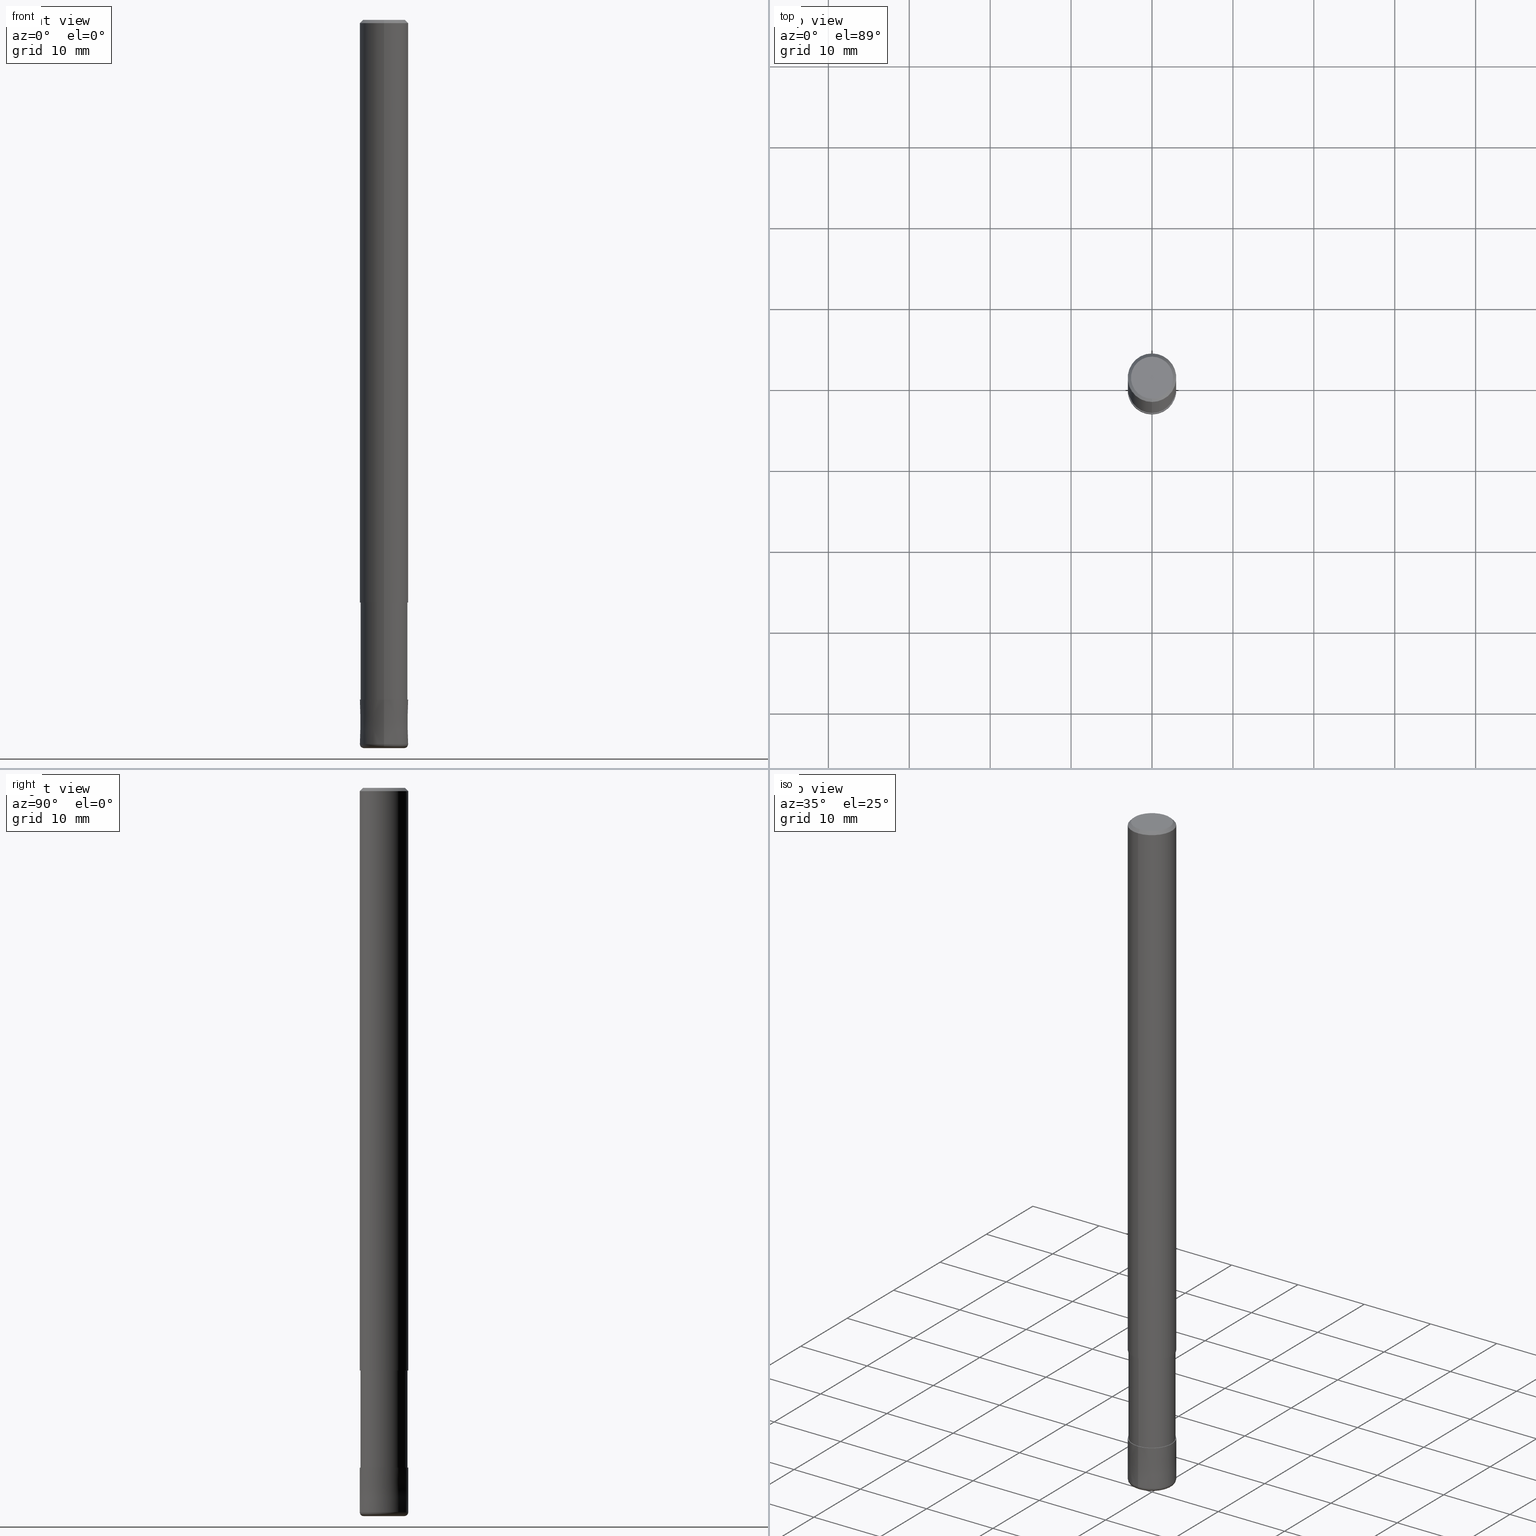
[diagram: canonical four-view strip — front | top / right | iso, engineering-drawing reading convention]
A machine part, canonical four-view strip (front | top / right | iso — engineering-drawing reading convention). The complete STEP part file that produces these views, byte-faithful:
ISO-10303-21;
HEADER;
FILE_DESCRIPTION(('no description'),'unknown implementation level');
FILE_NAME('HRRS4060-05-18-Huellk.stp','  ',('CIMSOURCE GmbH'),('CADClick - KiM GmbH - www.kimweb.de'),'unknown preprocess','ACIS','unknown authorization');
FILE_SCHEMA(('automotive_design'));
ENDSEC;
DATA;
#1=MECHANICAL_DESIGN_GEOMETRIC_PRESENTATION_REPRESENTATION(' ',(#14,#15,#16,#17,#18,#19,#20,#21,#22,#23,#24,#25,#26,#27,#28,#29,#30,#31,#32,#33,#34,#35,#36,#37,#38,#39,#40,#41,#42,#43,#44,#45,#46,#47,#48,#49,#50,#51,#52,#53,#54,#55,#56,#57,#58,#59,#60,#61,#62,#63,#64,#65,#66,#67,#68,#69,#70,#71,#72),#10);
#2=PRODUCT_DEFINITION_CONTEXT('',#73,'design');
#3=APPLICATION_PROTOCOL_DEFINITION('INTERNATIONAL STANDARD','automotive_design',1994,#73);
#4=PRODUCT_CATEGORY_RELATIONSHIP('NONE','NONE',#74,#75);
#5=SHAPE_DEFINITION_REPRESENTATION(#76,#77);
#6=PRODUCT_DEFINITION_CONTEXT('',#78,'design');
#7=APPLICATION_PROTOCOL_DEFINITION('INTERNATIONAL STANDARD','automotive_design',1994,#78);
#8=PRODUCT_CATEGORY_RELATIONSHIP('NONE','NONE',#79,#80);
#9=SHAPE_DEFINITION_REPRESENTATION(#81,#82);
#10= (GEOMETRIC_REPRESENTATION_CONTEXT(3)GLOBAL_UNCERTAINTY_ASSIGNED_CONTEXT((#85))GLOBAL_UNIT_ASSIGNED_CONTEXT((#87,#88,#89))REPRESENTATION_CONTEXT('NONE','WORKSPACE'));
#14=STYLED_ITEM('',(#91),#92);
#15=STYLED_ITEM('',(#93),#94);
#16=STYLED_ITEM('',(#95),#96);
#17=STYLED_ITEM('',(#97),#98);
#18=STYLED_ITEM('',(#99),#100);
#19=STYLED_ITEM('',(#101),#102);
#20=STYLED_ITEM('',(#103),#104);
#21=STYLED_ITEM('',(#105),#106);
#22=STYLED_ITEM('',(#107),#108);
#23=STYLED_ITEM('',(#109),#110);
#24=STYLED_ITEM('',(#111),#112);
#25=STYLED_ITEM('',(#113),#114);
#26=STYLED_ITEM('',(#115),#116);
#27=STYLED_ITEM('',(#117),#118);
#28=STYLED_ITEM('',(#119),#120);
#29=STYLED_ITEM('',(#121),#122);
#30=STYLED_ITEM('',(#123),#124);
#31=STYLED_ITEM('',(#125),#126);
#32=STYLED_ITEM('',(#127),#128);
#33=STYLED_ITEM('',(#129),#130);
#34=STYLED_ITEM('',(#131),#132);
#35=STYLED_ITEM('',(#133),#134);
#36=STYLED_ITEM('',(#135),#136);
#37=STYLED_ITEM('',(#137),#138);
#38=STYLED_ITEM('',(#139),#140);
#39=STYLED_ITEM('',(#141),#142);
#40=STYLED_ITEM('',(#143),#144);
#41=STYLED_ITEM('',(#145),#146);
#42=STYLED_ITEM('',(#147),#148);
#43=STYLED_ITEM('',(#149),#150);
#44=STYLED_ITEM('',(#151),#152);
#45=STYLED_ITEM('',(#153),#154);
#46=STYLED_ITEM('',(#155),#156);
#47=STYLED_ITEM('',(#157),#158);
#48=STYLED_ITEM('',(#159),#160);
#49=STYLED_ITEM('',(#161),#162);
#50=STYLED_ITEM('',(#163),#164);
#51=STYLED_ITEM('',(#165),#166);
#52=STYLED_ITEM('',(#167),#168);
#53=STYLED_ITEM('',(#169),#170);
#54=STYLED_ITEM('',(#171),#172);
#55=STYLED_ITEM('',(#173),#174);
#56=STYLED_ITEM('',(#175),#176);
#57=STYLED_ITEM('',(#177),#178);
#58=STYLED_ITEM('',(#179),#180);
#59=STYLED_ITEM('',(#181),#182);
#60=STYLED_ITEM('',(#183),#184);
#61=STYLED_ITEM('',(#185),#186);
#62=STYLED_ITEM('',(#187),#188);
#63=STYLED_ITEM('',(#189),#190);
#64=STYLED_ITEM('',(#191),#192);
#65=STYLED_ITEM('',(#193),#194);
#66=STYLED_ITEM('',(#195),#196);
#67=STYLED_ITEM('',(#197),#198);
#68=STYLED_ITEM('',(#199),#200);
#69=STYLED_ITEM('',(#201),#202);
#70=STYLED_ITEM('',(#203),#204);
#71=STYLED_ITEM('',(#205),#206);
#72=STYLED_ITEM('',(#207),#208);
#73=APPLICATION_CONTEXT(' ');
#74=PRODUCT_CATEGORY('part','NONE');
#75=PRODUCT_RELATED_PRODUCT_CATEGORY('detail',' ',(#209));
#76=PRODUCT_DEFINITION_SHAPE('NONE','NONE',#210);
#77=ADVANCED_BREP_SHAPE_REPRESENTATION('1',(#126,#211),#10);
#78=APPLICATION_CONTEXT(' ');
#79=PRODUCT_CATEGORY('part','NONE');
#80=PRODUCT_RELATED_PRODUCT_CATEGORY('detail',' ',(#212));
#81=PRODUCT_DEFINITION_SHAPE('NONE','NONE',#213);
#82=ADVANCED_BREP_SHAPE_REPRESENTATION('2',(#108,#214),#10);
#85=UNCERTAINTY_MEASURE_WITH_UNIT(LENGTH_MEASURE(1.0E-006),#87,'','');
#87= (CONVERSION_BASED_UNIT('MILLIMETRE',#217)LENGTH_UNIT()NAMED_UNIT(#220));
#88= (NAMED_UNIT(#222)PLANE_ANGLE_UNIT()SI_UNIT($,.RADIAN.));
#89= (NAMED_UNIT(#222)SOLID_ANGLE_UNIT()SI_UNIT($,.STERADIAN.));
#91=PRESENTATION_STYLE_ASSIGNMENT((#228));
#92=EDGE_CURVE('',#174,#142,#229,.T.);
#93=PRESENTATION_STYLE_ASSIGNMENT((#230));
#94=EDGE_CURVE('',#190,#142,#231,.T.);
#95=PRESENTATION_STYLE_ASSIGNMENT((#232));
#96=VERTEX_POINT('',#233);
#97=PRESENTATION_STYLE_ASSIGNMENT((#234));
#98=EDGE_CURVE('',#138,#204,#235,.T.);
#99=PRESENTATION_STYLE_ASSIGNMENT((#236));
#100=EDGE_CURVE('',#190,#154,#237,.T.);
#101=PRESENTATION_STYLE_ASSIGNMENT((#238));
#102=EDGE_CURVE('',#96,#114,#239,.T.);
#103=PRESENTATION_STYLE_ASSIGNMENT((#240));
#104=VERTEX_POINT('',#241);
#105=PRESENTATION_STYLE_ASSIGNMENT((#242));
#106=EDGE_CURVE('',#142,#190,#243,.T.);
#107=PRESENTATION_STYLE_ASSIGNMENT((#244));
#108=MANIFOLD_SOLID_BREP('2',#245);
#109=PRESENTATION_STYLE_ASSIGNMENT((#246));
#110=VERTEX_POINT('',#247);
#111=PRESENTATION_STYLE_ASSIGNMENT((#248));
#112=EDGE_CURVE('',#154,#174,#249,.T.);
#113=PRESENTATION_STYLE_ASSIGNMENT((#250));
#114=VERTEX_POINT('',#251);
#115=PRESENTATION_STYLE_ASSIGNMENT((#252));
#116=ADVANCED_FACE('',(#253),#254,.T.);
#117=PRESENTATION_STYLE_ASSIGNMENT((#255));
#118=VERTEX_POINT('',#256);
#119=PRESENTATION_STYLE_ASSIGNMENT((#257));
#120=ADVANCED_FACE('',(#258,#259),#260,.T.);
#121=PRESENTATION_STYLE_ASSIGNMENT((#261));
#122=EDGE_CURVE('',#114,#96,#262,.T.);
#123=PRESENTATION_STYLE_ASSIGNMENT((#263));
#124=ADVANCED_FACE('',(#264),#265,.T.);
#125=PRESENTATION_STYLE_ASSIGNMENT((#266));
#126=MANIFOLD_SOLID_BREP('1',#267);
#127=PRESENTATION_STYLE_ASSIGNMENT((#268));
#128=ADVANCED_FACE('',(#269),#270,.T.);
#129=PRESENTATION_STYLE_ASSIGNMENT((#271));
#130=EDGE_CURVE('',#206,#198,#272,.T.);
#131=PRESENTATION_STYLE_ASSIGNMENT((#273));
#132=VERTEX_POINT('',#274);
#133=PRESENTATION_STYLE_ASSIGNMENT((#275));
#134=EDGE_CURVE('',#132,#138,#276,.T.);
#135=PRESENTATION_STYLE_ASSIGNMENT((#277));
#136=EDGE_CURVE('',#154,#110,#278,.T.);
#137=PRESENTATION_STYLE_ASSIGNMENT((#279));
#138=VERTEX_POINT('',#280);
#139=PRESENTATION_STYLE_ASSIGNMENT((#281));
#140=ADVANCED_FACE('',(#282),#283,.T.);
#141=PRESENTATION_STYLE_ASSIGNMENT((#284));
#142=VERTEX_POINT('',#285);
#143=PRESENTATION_STYLE_ASSIGNMENT((#286));
#144=EDGE_CURVE('',#204,#138,#287,.T.);
#145=PRESENTATION_STYLE_ASSIGNMENT((#288));
#146=EDGE_CURVE('',#114,#198,#289,.T.);
#147=PRESENTATION_STYLE_ASSIGNMENT((#290));
#148=EDGE_CURVE('',#118,#132,#291,.T.);
#149=PRESENTATION_STYLE_ASSIGNMENT((#292));
#150=VERTEX_POINT('',#293);
#151=PRESENTATION_STYLE_ASSIGNMENT((#294));
#152=EDGE_CURVE('',#206,#96,#295,.T.);
#153=PRESENTATION_STYLE_ASSIGNMENT((#296));
#154=VERTEX_POINT('',#297);
#155=PRESENTATION_STYLE_ASSIGNMENT((#298));
#156=EDGE_CURVE('',#204,#118,#299,.T.);
#157=PRESENTATION_STYLE_ASSIGNMENT((#300));
#158=ADVANCED_FACE('',(#301),#302,.T.);
#159=PRESENTATION_STYLE_ASSIGNMENT((#303));
#160=EDGE_CURVE('',#114,#182,#304,.T.);
#161=PRESENTATION_STYLE_ASSIGNMENT((#305));
#162=EDGE_CURVE('',#104,#96,#306,.T.);
#163=PRESENTATION_STYLE_ASSIGNMENT((#307));
#164=ADVANCED_FACE('',(#308),#309,.T.);
#165=PRESENTATION_STYLE_ASSIGNMENT((#310));
#166=EDGE_CURVE('',#110,#150,#311,.T.);
#167=PRESENTATION_STYLE_ASSIGNMENT((#312));
#168=ADVANCED_FACE('',(#313),#314,.T.);
#169=PRESENTATION_STYLE_ASSIGNMENT((#315));
#170=ADVANCED_FACE('',(#316),#317,.T.);
#171=PRESENTATION_STYLE_ASSIGNMENT((#318));
#172=ADVANCED_FACE('',(#319),#320,.T.);
#173=PRESENTATION_STYLE_ASSIGNMENT((#321));
#174=VERTEX_POINT('',#322);
#175=PRESENTATION_STYLE_ASSIGNMENT((#323));
#176=ADVANCED_FACE('',(#324),#325,.T.);
#177=PRESENTATION_STYLE_ASSIGNMENT((#326));
#178=EDGE_CURVE('',#150,#110,#327,.T.);
#179=PRESENTATION_STYLE_ASSIGNMENT((#328));
#180=EDGE_CURVE('',#174,#154,#329,.T.);
#181=PRESENTATION_STYLE_ASSIGNMENT((#330));
#182=VERTEX_POINT('',#331);
#183=PRESENTATION_STYLE_ASSIGNMENT((#332));
#184=ADVANCED_FACE('',(#333),#334,.T.);
#185=PRESENTATION_STYLE_ASSIGNMENT((#335));
#186=EDGE_CURVE('',#150,#174,#336,.T.);
#187=PRESENTATION_STYLE_ASSIGNMENT((#337));
#188=EDGE_CURVE('',#132,#118,#338,.T.);
#189=PRESENTATION_STYLE_ASSIGNMENT((#339));
#190=VERTEX_POINT('',#340);
#191=PRESENTATION_STYLE_ASSIGNMENT((#341));
#192=ADVANCED_FACE('',(#342),#343,.T.);
#193=PRESENTATION_STYLE_ASSIGNMENT((#344));
#194=EDGE_CURVE('',#104,#182,#345,.T.);
#195=PRESENTATION_STYLE_ASSIGNMENT((#346));
#196=ADVANCED_FACE('',(#347),#348,.T.);
#197=PRESENTATION_STYLE_ASSIGNMENT((#349));
#198=VERTEX_POINT('',#350);
#199=PRESENTATION_STYLE_ASSIGNMENT((#351));
#200=EDGE_CURVE('',#198,#206,#352,.T.);
#201=PRESENTATION_STYLE_ASSIGNMENT((#353));
#202=EDGE_CURVE('',#182,#104,#354,.T.);
#203=PRESENTATION_STYLE_ASSIGNMENT((#355));
#204=VERTEX_POINT('',#356);
#205=PRESENTATION_STYLE_ASSIGNMENT((#357));
#206=VERTEX_POINT('',#358);
#207=PRESENTATION_STYLE_ASSIGNMENT((#359));
#208=ADVANCED_FACE('',(#360),#361,.T.);
#209=PRODUCT('1','1','PART-1-DESC',(#362));
#210=PRODUCT_DEFINITION('NONE','NONE',#363,#2);
#211=AXIS2_PLACEMENT_3D('',#364,#365,#366);
#212=PRODUCT('2','2','PART-2-DESC',(#367));
#213=PRODUCT_DEFINITION('NONE','NONE',#368,#6);
#214=AXIS2_PLACEMENT_3D('',#369,#370,#371);
#217=LENGTH_MEASURE_WITH_UNIT(LENGTH_MEASURE(1.0),#372);
#220=DIMENSIONAL_EXPONENTS(1.0,0.0,0.0,0.0,0.0,0.0,0.0);
#222=DIMENSIONAL_EXPONENTS(0.0,0.0,0.0,0.0,0.0,0.0,0.0);
#228=CURVE_STYLE('',#373,POSITIVE_LENGTH_MEASURE(1.0E-006),#374);
#229=LINE('',#375,#376);
#230=CURVE_STYLE('',#377,POSITIVE_LENGTH_MEASURE(1.0E-006),#378);
#231=CIRCLE('',#379,2.6);
#232=POINT_STYLE(' ',#380,POSITIVE_LENGTH_MEASURE(1.0E-006),#381);
#233=CARTESIAN_POINT('',(0.0,3.0,-89.5));
#234=CURVE_STYLE('',#382,POSITIVE_LENGTH_MEASURE(1.0E-006),#383);
#235=CIRCLE('',#384,2.90995);
#236=CURVE_STYLE('',#385,POSITIVE_LENGTH_MEASURE(1.0E-006),#386);
#237=LINE('',#387,#388);
#238=CURVE_STYLE('',#389,POSITIVE_LENGTH_MEASURE(1.0E-006),#390);
#239=CIRCLE('',#391,3.0);
#240=POINT_STYLE(' ',#392,POSITIVE_LENGTH_MEASURE(1.0E-006),#393);
#241=CARTESIAN_POINT('',(0.0,2.9999,-84.0));
#242=CURVE_STYLE('',#394,POSITIVE_LENGTH_MEASURE(1.0E-006),#395);
#243=CIRCLE('',#396,2.6);
#244=SURFACE_STYLE_USAGE(.BOTH.,#397);
#245=CLOSED_SHELL('',(#128,#170,#116,#192,#196,#184));
#246=POINT_STYLE(' ',#398,POSITIVE_LENGTH_MEASURE(1.0E-006),#399);
#247=CARTESIAN_POINT('',(0.0,3.0,-72.0));
#248=CURVE_STYLE('',#400,POSITIVE_LENGTH_MEASURE(1.0E-006),#401);
#249=CIRCLE('',#402,3.0);
#250=POINT_STYLE(' ',#403,POSITIVE_LENGTH_MEASURE(1.0E-006),#404);
#251=CARTESIAN_POINT('',(3.67381906146713E-016,-3.0,-89.5));
#252=SURFACE_STYLE_USAGE(.BOTH.,#405);
#253=FACE_OUTER_BOUND('',#406,.T.);
#254=PLANE('',#407);
#255=POINT_STYLE(' ',#408,POSITIVE_LENGTH_MEASURE(1.0E-006),#409);
#256=CARTESIAN_POINT('',(0.0,2.90995,-84.0));
#257=SURFACE_STYLE_USAGE(.BOTH.,#410);
#258=FACE_OUTER_BOUND('',#411,.T.);
#259=FACE_BOUND('',#412,.T.);
#260=PLANE('',#413);
#261=CURVE_STYLE('',#414,POSITIVE_LENGTH_MEASURE(1.0E-006),#415);
#262=CIRCLE('',#416,3.0);
#263=SURFACE_STYLE_USAGE(.BOTH.,#417);
#264=FACE_OUTER_BOUND('',#418,.T.);
#265=CYLINDRICAL_SURFACE('',#419,2.90995);
#266=SURFACE_STYLE_USAGE(.BOTH.,#420);
#267=CLOSED_SHELL('',(#124,#140,#176,#120,#172,#168,#158,#208,#164));
#268=SURFACE_STYLE_USAGE(.BOTH.,#421);
#269=FACE_OUTER_BOUND('',#422,.T.);
#270=TOROIDAL_SURFACE('',#423,2.5,0.500000000000001);
#271=CURVE_STYLE('',#424,POSITIVE_LENGTH_MEASURE(1.0E-006),#425);
#272=CIRCLE('',#426,2.5);
#273=POINT_STYLE(' ',#427,POSITIVE_LENGTH_MEASURE(1.0E-006),#428);
#274=CARTESIAN_POINT('',(3.56354325930543E-016,-2.90995,-84.0));
#275=CURVE_STYLE('',#429,POSITIVE_LENGTH_MEASURE(1.0E-006),#430);
#276=LINE('',#431,#432);
#277=CURVE_STYLE('',#433,POSITIVE_LENGTH_MEASURE(1.0E-006),#434);
#278=LINE('',#435,#436);
#279=POINT_STYLE(' ',#437,POSITIVE_LENGTH_MEASURE(1.0E-006),#438);
#280=CARTESIAN_POINT('',(3.56354325930543E-016,-2.90995,-72.0));
#281=SURFACE_STYLE_USAGE(.BOTH.,#439);
#282=FACE_OUTER_BOUND('',#440,.T.);
#283=CYLINDRICAL_SURFACE('',#441,3.0);
#284=POINT_STYLE(' ',#442,POSITIVE_LENGTH_MEASURE(1.0E-006),#443);
#285=CARTESIAN_POINT('',(3.18397651993818E-016,-2.6,0.0));
#286=CURVE_STYLE('',#444,POSITIVE_LENGTH_MEASURE(1.0E-006),#445);
#287=CIRCLE('',#446,2.90995);
#288=CURVE_STYLE('',#447,POSITIVE_LENGTH_MEASURE(1.0E-006),#448);
#289=CIRCLE('',#449,0.500000000000001);
#290=CURVE_STYLE('',#450,POSITIVE_LENGTH_MEASURE(1.0E-006),#451);
#291=CIRCLE('',#452,2.90995);
#292=POINT_STYLE(' ',#453,POSITIVE_LENGTH_MEASURE(1.0E-006),#454);
#293=CARTESIAN_POINT('',(3.67381906146713E-016,-3.0,-72.0));
#294=CURVE_STYLE('',#455,POSITIVE_LENGTH_MEASURE(1.0E-006),#456);
#295=CIRCLE('',#457,0.500000000000001);
#296=POINT_STYLE(' ',#458,POSITIVE_LENGTH_MEASURE(1.0E-006),#459);
#297=CARTESIAN_POINT('',(0.0,3.0,-0.400000000000006));
#298=CURVE_STYLE('',#460,POSITIVE_LENGTH_MEASURE(1.0E-006),#461);
#299=LINE('',#462,#463);
#300=SURFACE_STYLE_USAGE(.BOTH.,#464);
#301=FACE_OUTER_BOUND('',#465,.T.);
#302=CYLINDRICAL_SURFACE('',#466,3.0);
#303=CURVE_STYLE('',#467,POSITIVE_LENGTH_MEASURE(1.0E-006),#468);
#304=LINE('',#469,#470);
#305=CURVE_STYLE('',#471,POSITIVE_LENGTH_MEASURE(1.0E-006),#472);
#306=LINE('',#473,#474);
#307=SURFACE_STYLE_USAGE(.BOTH.,#475);
#308=FACE_OUTER_BOUND('',#476,.T.);
#309=PLANE('',#477);
#310=CURVE_STYLE('',#478,POSITIVE_LENGTH_MEASURE(1.0E-006),#479);
#311=CIRCLE('',#480,3.0);
#312=SURFACE_STYLE_USAGE(.BOTH.,#481);
#313=FACE_OUTER_BOUND('',#482,.T.);
#314=CONICAL_SURFACE('',#483,2.8,0.785398163397441);
#315=SURFACE_STYLE_USAGE(.BOTH.,#484);
#316=FACE_OUTER_BOUND('',#485,.T.);
#317=CONICAL_SURFACE('',#486,2.99995,1.8181818179853E-005);
#318=SURFACE_STYLE_USAGE(.BOTH.,#487);
#319=FACE_OUTER_BOUND('',#488,.T.);
#320=PLANE('',#489);
#321=POINT_STYLE(' ',#490,POSITIVE_LENGTH_MEASURE(1.0E-006),#491);
#322=CARTESIAN_POINT('',(3.67381906146713E-016,-3.0,-0.400000000000006));
#323=SURFACE_STYLE_USAGE(.BOTH.,#492);
#324=FACE_OUTER_BOUND('',#493,.T.);
#325=CONICAL_SURFACE('',#494,2.8,0.785398163397441);
#326=CURVE_STYLE('',#495,POSITIVE_LENGTH_MEASURE(1.0E-006),#496);
#327=CIRCLE('',#497,3.0);
#328=CURVE_STYLE('',#498,POSITIVE_LENGTH_MEASURE(1.0E-006),#499);
#329=CIRCLE('',#500,3.0);
#330=POINT_STYLE(' ',#501,POSITIVE_LENGTH_MEASURE(1.0E-006),#502);
#331=CARTESIAN_POINT('',(3.67369660083175E-016,-2.9999,-84.0));
#332=SURFACE_STYLE_USAGE(.BOTH.,#503);
#333=FACE_OUTER_BOUND('',#504,.T.);
#334=PLANE('',#505);
#335=CURVE_STYLE('',#506,POSITIVE_LENGTH_MEASURE(1.0E-006),#507);
#336=LINE('',#508,#509);
#337=CURVE_STYLE('',#510,POSITIVE_LENGTH_MEASURE(1.0E-006),#511);
#338=CIRCLE('',#512,2.90995);
#339=POINT_STYLE(' ',#513,POSITIVE_LENGTH_MEASURE(1.0E-006),#514);
#340=CARTESIAN_POINT('',(0.0,2.6,0.0));
#341=SURFACE_STYLE_USAGE(.BOTH.,#515);
#342=FACE_OUTER_BOUND('',#516,.T.);
#343=CONICAL_SURFACE('',#517,2.99995,1.8181818179853E-005);
#344=CURVE_STYLE('',#518,POSITIVE_LENGTH_MEASURE(1.0E-006),#519);
#345=CIRCLE('',#520,2.9999);
#346=SURFACE_STYLE_USAGE(.BOTH.,#521);
#347=FACE_OUTER_BOUND('',#522,.T.);
#348=TOROIDAL_SURFACE('',#523,2.5,0.500000000000001);
#349=POINT_STYLE(' ',#524,POSITIVE_LENGTH_MEASURE(1.0E-006),#525);
#350=CARTESIAN_POINT('',(3.06151588455594E-016,-2.5,-90.0));
#351=CURVE_STYLE('',#526,POSITIVE_LENGTH_MEASURE(1.0E-006),#527);
#352=CIRCLE('',#528,2.5);
#353=CURVE_STYLE('',#529,POSITIVE_LENGTH_MEASURE(1.0E-006),#530);
#354=CIRCLE('',#531,2.9999);
#355=POINT_STYLE(' ',#532,POSITIVE_LENGTH_MEASURE(1.0E-006),#533);
#356=CARTESIAN_POINT('',(0.0,2.90995,-72.0));
#357=POINT_STYLE(' ',#534,POSITIVE_LENGTH_MEASURE(1.0E-006),#535);
#358=CARTESIAN_POINT('',(0.0,2.5,-90.0));
#359=SURFACE_STYLE_USAGE(.BOTH.,#536);
#360=FACE_OUTER_BOUND('',#537,.T.);
#361=CYLINDRICAL_SURFACE('',#538,2.90995);
#362=PRODUCT_CONTEXT('',#73,'mechanical');
#363=PRODUCT_DEFINITION_FORMATION_WITH_SPECIFIED_SOURCE(' ','NONE',#209,.NOT_KNOWN.);
#364=CARTESIAN_POINT('',(0.0,0.0,0.0));
#365=DIRECTION('',(0.0,0.0,1.0));
#366=DIRECTION('',(1.0,0.0,0.0));
#367=PRODUCT_CONTEXT('',#78,'mechanical');
#368=PRODUCT_DEFINITION_FORMATION_WITH_SPECIFIED_SOURCE(' ','NONE',#212,.NOT_KNOWN.);
#369=CARTESIAN_POINT('',(0.0,0.0,0.0));
#370=DIRECTION('',(0.0,0.0,1.0));
#371=DIRECTION('',(1.0,0.0,0.0));
#372= (NAMED_UNIT(#220)LENGTH_UNIT()SI_UNIT(.MILLI.,.METRE.));
#373=DRAUGHTING_PRE_DEFINED_CURVE_FONT('continuous');
#374=COLOUR_RGB('',0.498039215803146,0.498039215803146,0.498039215803146);
#375=CARTESIAN_POINT('',(3.42889779070266E-016,-2.8,-0.200000000000003));
#376=VECTOR('',#540,1.0);
#377=DRAUGHTING_PRE_DEFINED_CURVE_FONT('continuous');
#378=COLOUR_RGB('',0.498039215803146,0.498039215803146,0.498039215803146);
#379=AXIS2_PLACEMENT_3D('',#541,#542,#543);
#380=PRE_DEFINED_MARKER('');
#381=COLOUR_RGB('',0.800000011920929,0.800000011920929,0.800000011920929);
#382=DRAUGHTING_PRE_DEFINED_CURVE_FONT('continuous');
#383=COLOUR_RGB('',0.498039215803146,0.498039215803146,0.498039215803146);
#384=AXIS2_PLACEMENT_3D('',#544,#545,#546);
#385=DRAUGHTING_PRE_DEFINED_CURVE_FONT('continuous');
#386=COLOUR_RGB('',0.498039215803146,0.498039215803146,0.498039215803146);
#387=CARTESIAN_POINT('',(-3.42889779070266E-016,2.8,-0.200000000000003));
#388=VECTOR('',#547,1.0);
#389=DRAUGHTING_PRE_DEFINED_CURVE_FONT('continuous');
#390=COLOUR_RGB('',0.800000011920929,0.800000011920929,0.800000011920929);
#391=AXIS2_PLACEMENT_3D('',#548,#549,#550);
#392=PRE_DEFINED_MARKER('');
#393=COLOUR_RGB('',0.800000011920929,0.800000011920929,0.800000011920929);
#394=DRAUGHTING_PRE_DEFINED_CURVE_FONT('continuous');
#395=COLOUR_RGB('',0.498039215803146,0.498039215803146,0.498039215803146);
#396=AXIS2_PLACEMENT_3D('',#551,#552,#553);
#397=SURFACE_SIDE_STYLE('',(#554));
#398=PRE_DEFINED_MARKER('');
#399=COLOUR_RGB('',0.498039215803146,0.498039215803146,0.498039215803146);
#400=DRAUGHTING_PRE_DEFINED_CURVE_FONT('continuous');
#401=COLOUR_RGB('',0.498039215803146,0.498039215803146,0.498039215803146);
#402=AXIS2_PLACEMENT_3D('',#555,#556,#557);
#403=PRE_DEFINED_MARKER('');
#404=COLOUR_RGB('',0.800000011920929,0.800000011920929,0.800000011920929);
#405=SURFACE_SIDE_STYLE('',(#558));
#406=EDGE_LOOP('',(#559,#560));
#407=AXIS2_PLACEMENT_3D('',#561,#562,#563);
#408=PRE_DEFINED_MARKER('');
#409=COLOUR_RGB('',0.498039215803146,0.498039215803146,0.498039215803146);
#410=SURFACE_SIDE_STYLE('',(#564));
#411=EDGE_LOOP('',(#565,#566));
#412=EDGE_LOOP('',(#567,#568));
#413=AXIS2_PLACEMENT_3D('',#569,#570,#571);
#414=DRAUGHTING_PRE_DEFINED_CURVE_FONT('continuous');
#415=COLOUR_RGB('',0.800000011920929,0.800000011920929,0.800000011920929);
#416=AXIS2_PLACEMENT_3D('',#572,#573,#574);
#417=SURFACE_SIDE_STYLE('',(#575));
#418=EDGE_LOOP('',(#576,#577,#578,#579));
#419=AXIS2_PLACEMENT_3D('',#580,#581,#582);
#420=SURFACE_SIDE_STYLE('',(#583));
#421=SURFACE_SIDE_STYLE('',(#584));
#422=EDGE_LOOP('',(#585,#586,#587,#588));
#423=AXIS2_PLACEMENT_3D('',#589,#590,#591);
#424=DRAUGHTING_PRE_DEFINED_CURVE_FONT('continuous');
#425=COLOUR_RGB('',0.800000011920929,0.800000011920929,0.800000011920929);
#426=AXIS2_PLACEMENT_3D('',#592,#593,#594);
#427=PRE_DEFINED_MARKER('');
#428=COLOUR_RGB('',0.498039215803146,0.498039215803146,0.498039215803146);
#429=DRAUGHTING_PRE_DEFINED_CURVE_FONT('continuous');
#430=COLOUR_RGB('',0.498039215803146,0.498039215803146,0.498039215803146);
#431=CARTESIAN_POINT('',(3.56354325930543E-016,-2.90995,-78.0));
#432=VECTOR('',#595,1.0);
#433=DRAUGHTING_PRE_DEFINED_CURVE_FONT('continuous');
#434=COLOUR_RGB('',0.498039215803146,0.498039215803146,0.498039215803146);
#435=CARTESIAN_POINT('',(-3.67381906146713E-016,3.0,-36.2));
#436=VECTOR('',#596,1.0);
#437=PRE_DEFINED_MARKER('');
#438=COLOUR_RGB('',0.498039215803146,0.498039215803146,0.498039215803146);
#439=SURFACE_SIDE_STYLE('',(#597));
#440=EDGE_LOOP('',(#598,#599,#600,#601));
#441=AXIS2_PLACEMENT_3D('',#602,#603,#604);
#442=PRE_DEFINED_MARKER('');
#443=COLOUR_RGB('',0.498039215803146,0.498039215803146,0.498039215803146);
#444=DRAUGHTING_PRE_DEFINED_CURVE_FONT('continuous');
#445=COLOUR_RGB('',0.498039215803146,0.498039215803146,0.498039215803146);
#446=AXIS2_PLACEMENT_3D('',#605,#606,#607);
#447=DRAUGHTING_PRE_DEFINED_CURVE_FONT('continuous');
#448=COLOUR_RGB('',0.800000011920929,0.800000011920929,0.800000011920929);
#449=AXIS2_PLACEMENT_3D('',#608,#609,#610);
#450=DRAUGHTING_PRE_DEFINED_CURVE_FONT('continuous');
#451=COLOUR_RGB('',0.498039215803146,0.498039215803146,0.498039215803146);
#452=AXIS2_PLACEMENT_3D('',#611,#612,#613);
#453=PRE_DEFINED_MARKER('');
#454=COLOUR_RGB('',0.498039215803146,0.498039215803146,0.498039215803146);
#455=DRAUGHTING_PRE_DEFINED_CURVE_FONT('continuous');
#456=COLOUR_RGB('',0.800000011920929,0.800000011920929,0.800000011920929);
#457=AXIS2_PLACEMENT_3D('',#614,#615,#616);
#458=PRE_DEFINED_MARKER('');
#459=COLOUR_RGB('',0.498039215803146,0.498039215803146,0.498039215803146);
#460=DRAUGHTING_PRE_DEFINED_CURVE_FONT('continuous');
#461=COLOUR_RGB('',0.498039215803146,0.498039215803146,0.498039215803146);
#462=CARTESIAN_POINT('',(-3.56354325930543E-016,2.90995,-78.0));
#463=VECTOR('',#617,1.0);
#464=SURFACE_SIDE_STYLE('',(#618));
#465=EDGE_LOOP('',(#619,#620,#621,#622));
#466=AXIS2_PLACEMENT_3D('',#623,#624,#625);
#467=DRAUGHTING_PRE_DEFINED_CURVE_FONT('continuous');
#468=COLOUR_RGB('',0.800000011920929,0.800000011920929,0.800000011920929);
#469=CARTESIAN_POINT('',(3.67375783114944E-016,-2.99995,-86.75));
#470=VECTOR('',#626,1.0);
#471=DRAUGHTING_PRE_DEFINED_CURVE_FONT('continuous');
#472=COLOUR_RGB('',0.800000011920929,0.800000011920929,0.800000011920929);
#473=CARTESIAN_POINT('',(-3.67375783114944E-016,2.99995,-86.75));
#474=VECTOR('',#627,1.0);
#475=SURFACE_SIDE_STYLE('',(#628));
#476=EDGE_LOOP('',(#629,#630));
#477=AXIS2_PLACEMENT_3D('',#631,#632,#633);
#478=DRAUGHTING_PRE_DEFINED_CURVE_FONT('continuous');
#479=COLOUR_RGB('',0.498039215803146,0.498039215803146,0.498039215803146);
#480=AXIS2_PLACEMENT_3D('',#634,#635,#636);
#481=SURFACE_SIDE_STYLE('',(#637));
#482=EDGE_LOOP('',(#638,#639,#640,#641));
#483=AXIS2_PLACEMENT_3D('',#642,#643,#644);
#484=SURFACE_SIDE_STYLE('',(#645));
#485=EDGE_LOOP('',(#646,#647,#648,#649));
#486=AXIS2_PLACEMENT_3D('',#650,#651,#652);
#487=SURFACE_SIDE_STYLE('',(#653));
#488=EDGE_LOOP('',(#654,#655));
#489=AXIS2_PLACEMENT_3D('',#656,#657,#658);
#490=PRE_DEFINED_MARKER('');
#491=COLOUR_RGB('',0.498039215803146,0.498039215803146,0.498039215803146);
#492=SURFACE_SIDE_STYLE('',(#659));
#493=EDGE_LOOP('',(#660,#661,#662,#663));
#494=AXIS2_PLACEMENT_3D('',#664,#665,#666);
#495=DRAUGHTING_PRE_DEFINED_CURVE_FONT('continuous');
#496=COLOUR_RGB('',0.498039215803146,0.498039215803146,0.498039215803146);
#497=AXIS2_PLACEMENT_3D('',#667,#668,#669);
#498=DRAUGHTING_PRE_DEFINED_CURVE_FONT('continuous');
#499=COLOUR_RGB('',0.498039215803146,0.498039215803146,0.498039215803146);
#500=AXIS2_PLACEMENT_3D('',#670,#671,#672);
#501=PRE_DEFINED_MARKER('');
#502=COLOUR_RGB('',0.800000011920929,0.800000011920929,0.800000011920929);
#503=SURFACE_SIDE_STYLE('',(#673));
#504=EDGE_LOOP('',(#674,#675));
#505=AXIS2_PLACEMENT_3D('',#676,#677,#678);
#506=DRAUGHTING_PRE_DEFINED_CURVE_FONT('continuous');
#507=COLOUR_RGB('',0.498039215803146,0.498039215803146,0.498039215803146);
#508=CARTESIAN_POINT('',(3.67381906146713E-016,-3.0,-36.2));
#509=VECTOR('',#679,1.0);
#510=DRAUGHTING_PRE_DEFINED_CURVE_FONT('continuous');
#511=COLOUR_RGB('',0.498039215803146,0.498039215803146,0.498039215803146);
#512=AXIS2_PLACEMENT_3D('',#680,#681,#682);
#513=PRE_DEFINED_MARKER('');
#514=COLOUR_RGB('',0.498039215803146,0.498039215803146,0.498039215803146);
#515=SURFACE_SIDE_STYLE('',(#683));
#516=EDGE_LOOP('',(#684,#685,#686,#687));
#517=AXIS2_PLACEMENT_3D('',#688,#689,#690);
#518=DRAUGHTING_PRE_DEFINED_CURVE_FONT('continuous');
#519=COLOUR_RGB('',0.800000011920929,0.800000011920929,0.800000011920929);
#520=AXIS2_PLACEMENT_3D('',#691,#692,#693);
#521=SURFACE_SIDE_STYLE('',(#694));
#522=EDGE_LOOP('',(#695,#696,#697,#698));
#523=AXIS2_PLACEMENT_3D('',#699,#700,#701);
#524=PRE_DEFINED_MARKER('');
#525=COLOUR_RGB('',0.800000011920929,0.800000011920929,0.800000011920929);
#526=DRAUGHTING_PRE_DEFINED_CURVE_FONT('continuous');
#527=COLOUR_RGB('',0.800000011920929,0.800000011920929,0.800000011920929);
#528=AXIS2_PLACEMENT_3D('',#702,#703,#704);
#529=DRAUGHTING_PRE_DEFINED_CURVE_FONT('continuous');
#530=COLOUR_RGB('',0.800000011920929,0.800000011920929,0.800000011920929);
#531=AXIS2_PLACEMENT_3D('',#705,#706,#707);
#532=PRE_DEFINED_MARKER('');
#533=COLOUR_RGB('',0.498039215803146,0.498039215803146,0.498039215803146);
#534=PRE_DEFINED_MARKER('');
#535=COLOUR_RGB('',0.800000011920929,0.800000011920929,0.800000011920929);
#536=SURFACE_SIDE_STYLE('',(#708));
#537=EDGE_LOOP('',(#709,#710,#711,#712));
#538=AXIS2_PLACEMENT_3D('',#713,#714,#715);
#540=DIRECTION('',(-8.65927457071929E-017,0.707106781186542,0.707106781186553));
#541=CARTESIAN_POINT('',(0.0,0.0,0.0));
#542=DIRECTION('',(0.0,0.0,-1.0));
#543=DIRECTION('',(0.0,1.0,0.0));
#544=CARTESIAN_POINT('',(0.0,0.0,-72.0));
#545=DIRECTION('',(0.0,0.0,-1.0));
#546=DIRECTION('',(0.0,1.0,0.0));
#547=DIRECTION('',(-8.65927457071929E-017,0.707106781186542,-0.707106781186553));
#548=CARTESIAN_POINT('',(0.0,0.0,-89.5));
#549=DIRECTION('',(0.0,0.0,-1.0));
#550=DIRECTION('',(0.0,1.0,0.0));
#551=CARTESIAN_POINT('',(0.0,0.0,0.0));
#552=DIRECTION('',(0.0,0.0,-1.0));
#553=DIRECTION('',(0.0,1.0,0.0));
#554=SURFACE_STYLE_FILL_AREA(#716);
#555=CARTESIAN_POINT('',(0.0,0.0,-0.400000000000006));
#556=DIRECTION('',(0.0,0.0,-1.0));
#557=DIRECTION('',(0.0,1.0,0.0));
#558=SURFACE_STYLE_FILL_AREA(#717);
#559=ORIENTED_EDGE('',*,*,#194,.F.);
#560=ORIENTED_EDGE('',*,*,#202,.F.);
#561=CARTESIAN_POINT('',(0.0,1.49995,-84.0));
#562=DIRECTION('',(-0.0,0.0,1.0));
#563=DIRECTION('',(0.0,-1.0,0.0));
#564=SURFACE_STYLE_FILL_AREA(#718);
#565=ORIENTED_EDGE('',*,*,#166,.T.);
#566=ORIENTED_EDGE('',*,*,#178,.T.);
#567=ORIENTED_EDGE('',*,*,#144,.F.);
#568=ORIENTED_EDGE('',*,*,#98,.F.);
#569=CARTESIAN_POINT('',(0.0,1.5,-72.0));
#570=DIRECTION('',(0.0,0.0,-1.0));
#571=DIRECTION('',(0.0,1.0,0.0));
#572=CARTESIAN_POINT('',(0.0,0.0,-89.5));
#573=DIRECTION('',(0.0,0.0,-1.0));
#574=DIRECTION('',(0.0,1.0,0.0));
#575=SURFACE_STYLE_FILL_AREA(#719);
#576=ORIENTED_EDGE('',*,*,#156,.F.);
#577=ORIENTED_EDGE('',*,*,#144,.T.);
#578=ORIENTED_EDGE('',*,*,#134,.F.);
#579=ORIENTED_EDGE('',*,*,#148,.F.);
#580=CARTESIAN_POINT('',(0.0,0.0,-78.0));
#581=DIRECTION('',(-0.0,-0.0,1.0));
#582=DIRECTION('',(0.0,1.0,0.0));
#583=SURFACE_STYLE_FILL_AREA(#720);
#584=SURFACE_STYLE_FILL_AREA(#721);
#585=ORIENTED_EDGE('',*,*,#146,.F.);
#586=ORIENTED_EDGE('',*,*,#122,.T.);
#587=ORIENTED_EDGE('',*,*,#152,.F.);
#588=ORIENTED_EDGE('',*,*,#200,.F.);
#589=CARTESIAN_POINT('',(0.0,0.0,-89.5));
#590=DIRECTION('',(0.0,0.0,-1.0));
#591=DIRECTION('',(0.0,-1.0,0.0));
#592=CARTESIAN_POINT('',(0.0,0.0,-90.0));
#593=DIRECTION('',(0.0,0.0,-1.0));
#594=DIRECTION('',(0.0,1.0,0.0));
#595=DIRECTION('',(-0.0,-0.0,1.0));
#596=DIRECTION('',(0.0,0.0,-1.0));
#597=SURFACE_STYLE_FILL_AREA(#722);
#598=ORIENTED_EDGE('',*,*,#136,.F.);
#599=ORIENTED_EDGE('',*,*,#112,.T.);
#600=ORIENTED_EDGE('',*,*,#186,.F.);
#601=ORIENTED_EDGE('',*,*,#166,.F.);
#602=CARTESIAN_POINT('',(0.0,0.0,-36.2));
#603=DIRECTION('',(-0.0,-0.0,1.0));
#604=DIRECTION('',(0.0,1.0,0.0));
#605=CARTESIAN_POINT('',(0.0,0.0,-72.0));
#606=DIRECTION('',(0.0,0.0,-1.0));
#607=DIRECTION('',(0.0,1.0,0.0));
#608=CARTESIAN_POINT('',(3.06151588455594E-016,-2.5,-89.5));
#609=DIRECTION('',(1.0,1.22460635382238E-016,0.0));
#610=DIRECTION('',(1.22460635382238E-016,-1.0,-0.0));
#611=CARTESIAN_POINT('',(0.0,0.0,-84.0));
#612=DIRECTION('',(0.0,0.0,-1.0));
#613=DIRECTION('',(0.0,1.0,0.0));
#614=CARTESIAN_POINT('',(-3.06151588455594E-016,2.5,-89.5));
#615=DIRECTION('',(1.0,1.22460635382238E-016,0.0));
#616=DIRECTION('',(-1.22460635382238E-016,1.0,0.0));
#617=DIRECTION('',(0.0,0.0,-1.0));
#618=SURFACE_STYLE_FILL_AREA(#723);
#619=ORIENTED_EDGE('',*,*,#136,.T.);
#620=ORIENTED_EDGE('',*,*,#178,.F.);
#621=ORIENTED_EDGE('',*,*,#186,.T.);
#622=ORIENTED_EDGE('',*,*,#180,.T.);
#623=CARTESIAN_POINT('',(0.0,0.0,-36.2));
#624=DIRECTION('',(-0.0,-0.0,1.0));
#625=DIRECTION('',(0.0,1.0,0.0));
#626=DIRECTION('',(-2.22655700658645E-021,1.81818181788513E-005,0.999999999834711));
#627=DIRECTION('',(-2.22655700658645E-021,1.81818181788513E-005,-0.999999999834711));
#628=SURFACE_STYLE_FILL_AREA(#724);
#629=ORIENTED_EDGE('',*,*,#148,.T.);
#630=ORIENTED_EDGE('',*,*,#188,.T.);
#631=CARTESIAN_POINT('',(0.0,1.454975,-84.0));
#632=DIRECTION('',(0.0,0.0,-1.0));
#633=DIRECTION('',(0.0,1.0,0.0));
#634=CARTESIAN_POINT('',(0.0,0.0,-72.0));
#635=DIRECTION('',(0.0,0.0,-1.0));
#636=DIRECTION('',(0.0,1.0,0.0));
#637=SURFACE_STYLE_FILL_AREA(#725);
#638=ORIENTED_EDGE('',*,*,#100,.T.);
#639=ORIENTED_EDGE('',*,*,#180,.F.);
#640=ORIENTED_EDGE('',*,*,#92,.T.);
#641=ORIENTED_EDGE('',*,*,#106,.T.);
#642=CARTESIAN_POINT('',(0.0,0.0,-0.200000000000003));
#643=DIRECTION('',(0.0,-0.0,-1.0));
#644=DIRECTION('',(0.0,1.0,0.0));
#645=SURFACE_STYLE_FILL_AREA(#726);
#646=ORIENTED_EDGE('',*,*,#162,.F.);
#647=ORIENTED_EDGE('',*,*,#194,.T.);
#648=ORIENTED_EDGE('',*,*,#160,.F.);
#649=ORIENTED_EDGE('',*,*,#102,.F.);
#650=CARTESIAN_POINT('',(0.0,0.0,-86.75));
#651=DIRECTION('',(0.0,-0.0,-1.0));
#652=DIRECTION('',(0.0,1.0,0.0));
#653=SURFACE_STYLE_FILL_AREA(#727);
#654=ORIENTED_EDGE('',*,*,#94,.F.);
#655=ORIENTED_EDGE('',*,*,#106,.F.);
#656=CARTESIAN_POINT('',(0.0,1.3,0.0));
#657=DIRECTION('',(-0.0,0.0,1.0));
#658=DIRECTION('',(0.0,-1.0,0.0));
#659=SURFACE_STYLE_FILL_AREA(#728);
#660=ORIENTED_EDGE('',*,*,#100,.F.);
#661=ORIENTED_EDGE('',*,*,#94,.T.);
#662=ORIENTED_EDGE('',*,*,#92,.F.);
#663=ORIENTED_EDGE('',*,*,#112,.F.);
#664=CARTESIAN_POINT('',(0.0,0.0,-0.200000000000003));
#665=DIRECTION('',(0.0,-0.0,-1.0));
#666=DIRECTION('',(0.0,1.0,0.0));
#667=CARTESIAN_POINT('',(0.0,0.0,-72.0));
#668=DIRECTION('',(0.0,0.0,-1.0));
#669=DIRECTION('',(0.0,1.0,0.0));
#670=CARTESIAN_POINT('',(0.0,0.0,-0.400000000000006));
#671=DIRECTION('',(0.0,0.0,-1.0));
#672=DIRECTION('',(0.0,1.0,0.0));
#673=SURFACE_STYLE_FILL_AREA(#729);
#674=ORIENTED_EDGE('',*,*,#130,.T.);
#675=ORIENTED_EDGE('',*,*,#200,.T.);
#676=CARTESIAN_POINT('',(0.0,1.25,-90.0));
#677=DIRECTION('',(0.0,0.0,-1.0));
#678=DIRECTION('',(0.0,1.0,0.0));
#679=DIRECTION('',(-0.0,-0.0,1.0));
#680=CARTESIAN_POINT('',(0.0,0.0,-84.0));
#681=DIRECTION('',(0.0,0.0,-1.0));
#682=DIRECTION('',(0.0,1.0,0.0));
#683=SURFACE_STYLE_FILL_AREA(#730);
#684=ORIENTED_EDGE('',*,*,#162,.T.);
#685=ORIENTED_EDGE('',*,*,#122,.F.);
#686=ORIENTED_EDGE('',*,*,#160,.T.);
#687=ORIENTED_EDGE('',*,*,#202,.T.);
#688=CARTESIAN_POINT('',(0.0,0.0,-86.75));
#689=DIRECTION('',(0.0,-0.0,-1.0));
#690=DIRECTION('',(0.0,1.0,0.0));
#691=CARTESIAN_POINT('',(0.0,0.0,-84.0));
#692=DIRECTION('',(0.0,0.0,-1.0));
#693=DIRECTION('',(0.0,1.0,0.0));
#694=SURFACE_STYLE_FILL_AREA(#731);
#695=ORIENTED_EDGE('',*,*,#146,.T.);
#696=ORIENTED_EDGE('',*,*,#130,.F.);
#697=ORIENTED_EDGE('',*,*,#152,.T.);
#698=ORIENTED_EDGE('',*,*,#102,.T.);
#699=CARTESIAN_POINT('',(0.0,0.0,-89.5));
#700=DIRECTION('',(0.0,0.0,-1.0));
#701=DIRECTION('',(0.0,-1.0,0.0));
#702=CARTESIAN_POINT('',(0.0,0.0,-90.0));
#703=DIRECTION('',(0.0,0.0,-1.0));
#704=DIRECTION('',(0.0,1.0,0.0));
#705=CARTESIAN_POINT('',(0.0,0.0,-84.0));
#706=DIRECTION('',(0.0,0.0,-1.0));
#707=DIRECTION('',(0.0,1.0,0.0));
#708=SURFACE_STYLE_FILL_AREA(#732);
#709=ORIENTED_EDGE('',*,*,#156,.T.);
#710=ORIENTED_EDGE('',*,*,#188,.F.);
#711=ORIENTED_EDGE('',*,*,#134,.T.);
#712=ORIENTED_EDGE('',*,*,#98,.T.);
#713=CARTESIAN_POINT('',(0.0,0.0,-78.0));
#714=DIRECTION('',(-0.0,-0.0,1.0));
#715=DIRECTION('',(0.0,1.0,0.0));
#716=FILL_AREA_STYLE('',(#733));
#717=FILL_AREA_STYLE('',(#734));
#718=FILL_AREA_STYLE('',(#735));
#719=FILL_AREA_STYLE('',(#736));
#720=FILL_AREA_STYLE('',(#737));
#721=FILL_AREA_STYLE('',(#738));
#722=FILL_AREA_STYLE('',(#739));
#723=FILL_AREA_STYLE('',(#740));
#724=FILL_AREA_STYLE('',(#741));
#725=FILL_AREA_STYLE('',(#742));
#726=FILL_AREA_STYLE('',(#743));
#727=FILL_AREA_STYLE('',(#744));
#728=FILL_AREA_STYLE('',(#745));
#729=FILL_AREA_STYLE('',(#746));
#730=FILL_AREA_STYLE('',(#747));
#731=FILL_AREA_STYLE('',(#748));
#732=FILL_AREA_STYLE('',(#749));
#733=FILL_AREA_STYLE_COLOUR('',#750);
#734=FILL_AREA_STYLE_COLOUR('',#751);
#735=FILL_AREA_STYLE_COLOUR('',#752);
#736=FILL_AREA_STYLE_COLOUR('',#753);
#737=FILL_AREA_STYLE_COLOUR('',#754);
#738=FILL_AREA_STYLE_COLOUR('',#755);
#739=FILL_AREA_STYLE_COLOUR('',#756);
#740=FILL_AREA_STYLE_COLOUR('',#757);
#741=FILL_AREA_STYLE_COLOUR('',#758);
#742=FILL_AREA_STYLE_COLOUR('',#759);
#743=FILL_AREA_STYLE_COLOUR('',#760);
#744=FILL_AREA_STYLE_COLOUR('',#761);
#745=FILL_AREA_STYLE_COLOUR('',#762);
#746=FILL_AREA_STYLE_COLOUR('',#763);
#747=FILL_AREA_STYLE_COLOUR('',#764);
#748=FILL_AREA_STYLE_COLOUR('',#765);
#749=FILL_AREA_STYLE_COLOUR('',#766);
#750=COLOUR_RGB('',0.800000011920929,0.800000011920929,0.800000011920929);
#751=COLOUR_RGB('',0.800000011920929,0.800000011920929,0.800000011920929);
#752=COLOUR_RGB('',0.498039215803146,0.498039215803146,0.498039215803146);
#753=COLOUR_RGB('',0.498039215803146,0.498039215803146,0.498039215803146);
#754=COLOUR_RGB('',0.498039215803146,0.498039215803146,0.498039215803146);
#755=COLOUR_RGB('',0.800000011920929,0.800000011920929,0.800000011920929);
#756=COLOUR_RGB('',0.498039215803146,0.498039215803146,0.498039215803146);
#757=COLOUR_RGB('',0.498039215803146,0.498039215803146,0.498039215803146);
#758=COLOUR_RGB('',0.498039215803146,0.498039215803146,0.498039215803146);
#759=COLOUR_RGB('',0.498039215803146,0.498039215803146,0.498039215803146);
#760=COLOUR_RGB('',0.800000011920929,0.800000011920929,0.800000011920929);
#761=COLOUR_RGB('',0.498039215803146,0.498039215803146,0.498039215803146);
#762=COLOUR_RGB('',0.498039215803146,0.498039215803146,0.498039215803146);
#763=COLOUR_RGB('',0.800000011920929,0.800000011920929,0.800000011920929);
#764=COLOUR_RGB('',0.800000011920929,0.800000011920929,0.800000011920929);
#765=COLOUR_RGB('',0.800000011920929,0.800000011920929,0.800000011920929);
#766=COLOUR_RGB('',0.498039215803146,0.498039215803146,0.498039215803146);
#767=AXIS2_PLACEMENT_3D('PCS',#768,#769,#770);
#768=CARTESIAN_POINT('',(0.0,0.0,0.0));
#769=DIRECTION('',(0.0,0.0,1.0));
#770=DIRECTION('',(1.0,0.0,0.0));
#771=AXIS2_PLACEMENT_3D('CIP',#772,#773,#774);
#772=CARTESIAN_POINT('',(0.0,0.0,-90.0));
#773=DIRECTION('',(0.0,0.0,1.0));
#774=DIRECTION('',(1.0,0.0,0.0));
#775=AXIS2_PLACEMENT_3D('CRP',#776,#777,#778);
#776=CARTESIAN_POINT('',(-3.0,0.0,-90.0));
#777=DIRECTION('',(0.0,0.0,1.0));
#778=DIRECTION('',(1.0,0.0,0.0));
#779=AXIS2_PLACEMENT_3D('MCS',#780,#781,#782);
#780=CARTESIAN_POINT('',(0.0,0.0,-72.0));
#781=DIRECTION('',(0.0,0.0,1.0));
#782=DIRECTION('',(1.0,0.0,0.0));
#783=CONSTRUCTIVE_GEOMETRY_REPRESENTATION_RELATIONSHIP('coordinate systems',$,#77,#784);
#784=CONSTRUCTIVE_GEOMETRY_REPRESENTATION('coordinate systems',(#767,#771,#775,#779),#10);
ENDSEC;
END-ISO-10303-21;
